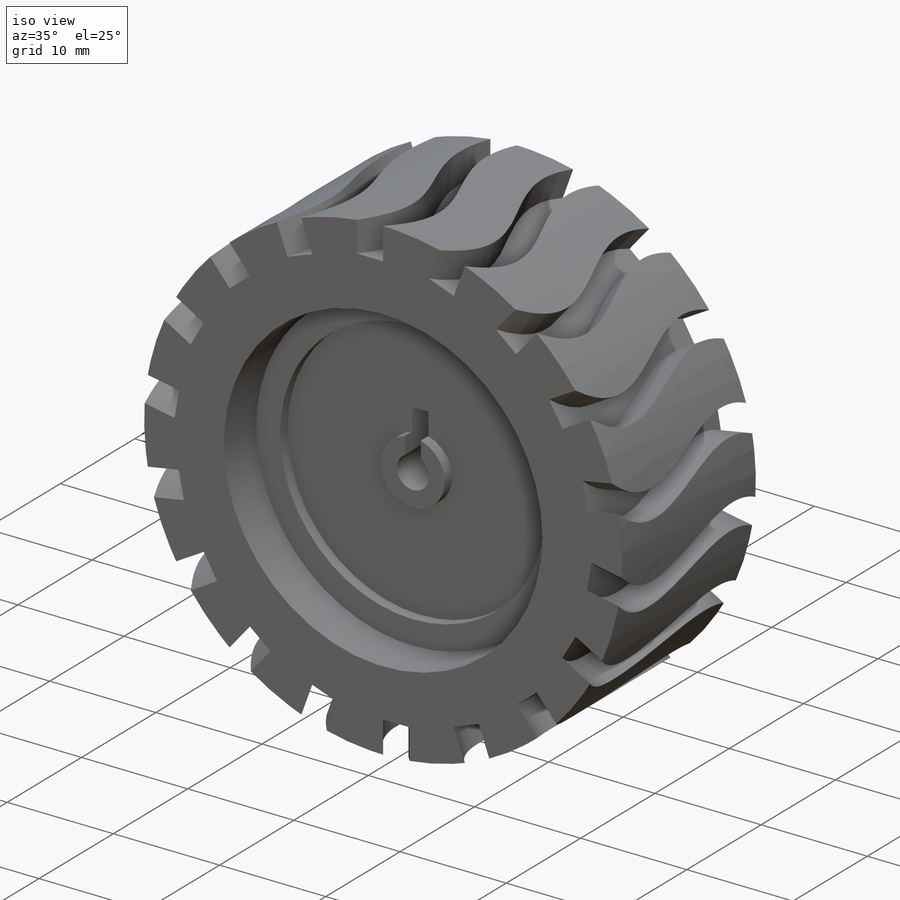
[diagram: iso view]
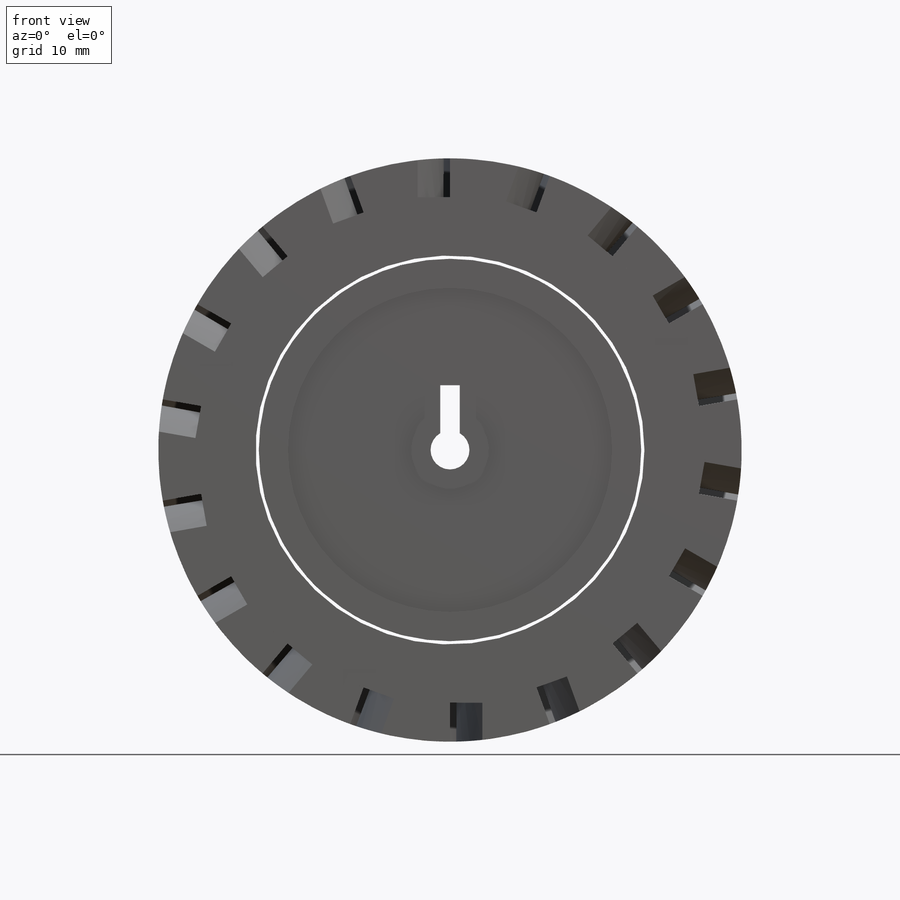
[diagram: front view]
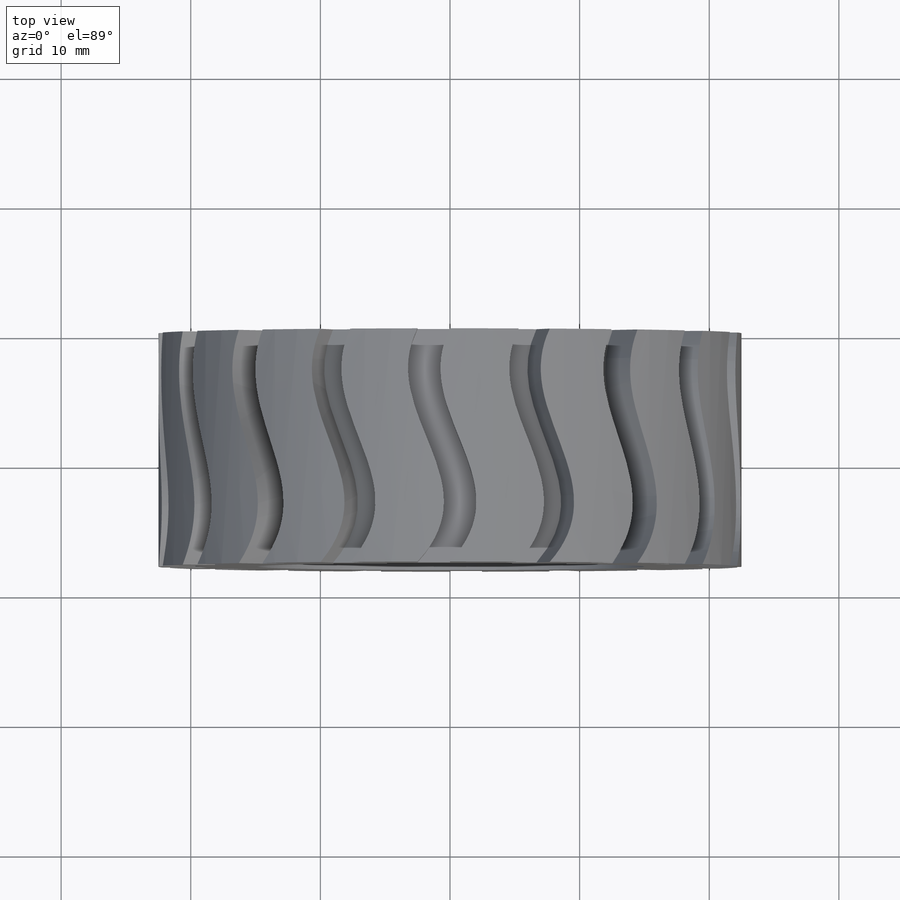
[diagram: top view]
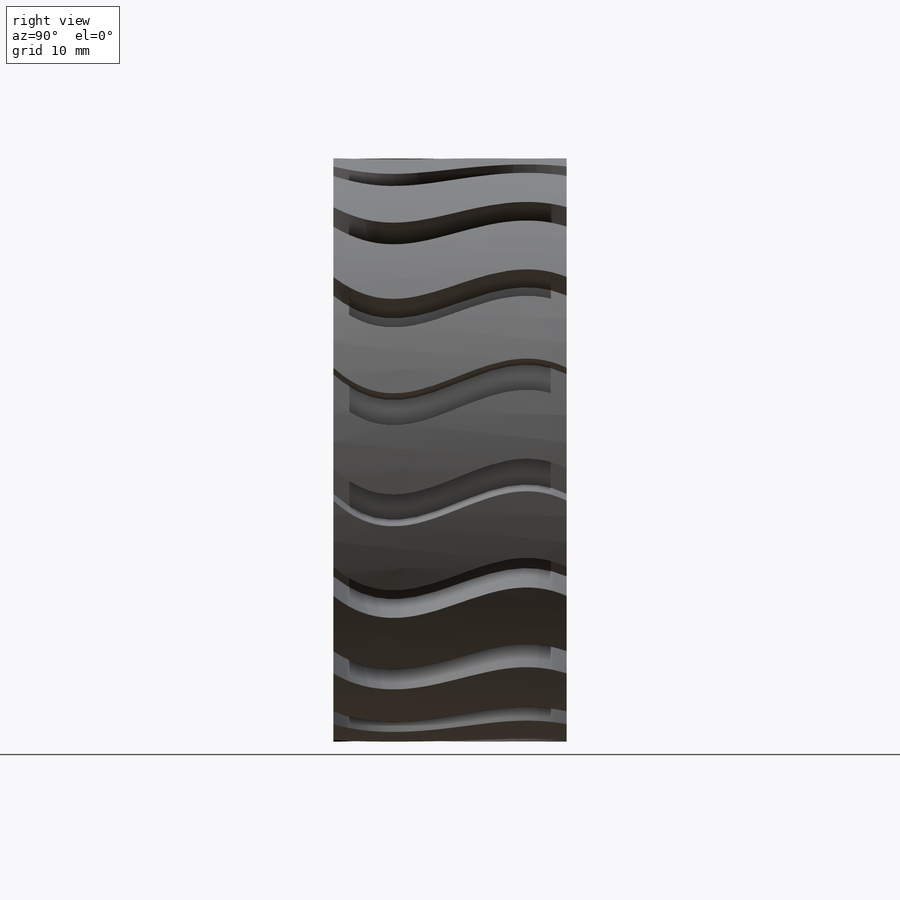
[diagram: right view]
SOLIDWORKS PART (.sldprt)
format: sldprt  version: not decoded by parser v0  size: 804,352 bytes
history: native  units: mm
features: sketch x12, cut_extrude x8, extrude x4, material x1, plane x1, pattern_circular x1 (+13 scaffold rows collapsed)
feature tree (40):
  scaffold x13  (default folders/planes/origin — collapsed)
  material  "Material <not specified>"
  sketch  "Sketch1"  dims[D1=45.0mm]
  extrude  "Boss-Extrude1"  Depth=18mm
  plane  "Plane1"  Offset=25mm
  sketch  "Sketch2"  dims[D1=2.5mm D2=2.5mm D3=2.5mm D4=2.5mm]
  cut_extrude  "Cut-Extrude1"  Depth=5.5mm
  pattern_circular  "CirPattern1"  Count=20 Angle=20deg
  sketch  "Sketch3"  dims[D1=30.0mm]
  cut_extrude  "Cut-Extrude2"  Depth=18mm
  sketch  "Sketch4"  dims[D1=29.5mm]
  extrude  "Boss-Extrude2"  Depth=18mm
  sketch  "Sketch5"  dims[D1=29.5mm]
  cut_extrude  "Cut-Extrude4"  Depth=4mm
  sketch  "Sketch6"  dims[D1=29.5mm]
  cut_extrude  "Cut-Extrude5"  Depth=4mm
  sketch  "Sketch7"  dims[D1=25.0mm D2=6.0mm]
  cut_extrude  "Cut-Extrude11"  Depth=1mm
  sketch  "Sketch8"  dims[D1=3.0mm]
  cut_extrude  "Cut-Extrude12"  Depth=20mm
  sketch  "Sketch9"  dims[D1=29.5mm]
  cut_extrude  "Cut-Extrude13"  Depth=1mm
  sketch  "Sketch10"  dims[D1=6.0mm D2=25.0mm D3=29.5mm D4=14.0mm D5=2.0mm D6=1.0mm D8=1.5mm D9=0.75mm D10=5.0mm D7=6.0]
  extrude  "Boss-Extrude5"  Depth=1mm
  sketch  "Sketch11"  dims[D1=24.0]
  extrude  "Boss-Extrude6"  Depth=4mm
  sketch  "Sketch12"  dims[D1=1.5mm D2=5.0mm D3=0.75mm]
  cut_extrude  "Cut-Extrude14"  Depth=20mm
decode coverage: 25 of 25 modeling features carry decoded parameters
note: suppression state not decoded; provenance and decode notes live in map.json
